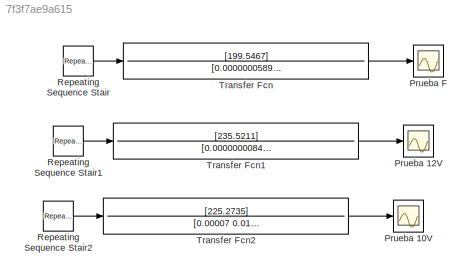
MODEL slx_7f3f7ae9a615
KIND model
CONFIG AbsTol = auto
CONFIG EnableMultiTasking = off
CONFIG FixedStep = auto
CONFIG MaxStep = auto
CONFIG MinStep = auto
CONFIG RelTol = 1e-3
CONFIG SampleTimeConstraint = Unconstrained
CONFIG SolverName = VariableStepAuto
CONFIG StartTime = 0.0
CONFIG StopTime = 8
BLOCK [Scope] Prueba 10V
  Floating = off
  NumInputPorts = 1
  ScopeSpecificationString = Simulink.scopes.TimeScopeBlockCfg('CurrentConfiguration', extmgr.ConfigurationSet(extmgr.Configuration('Core','General UI',true),extmgr.Configuration('Core','Source UI',true),extmgr.Configuration('Sources','WiredSimulink',true,'DataLoggingVariableName','ScopeData2'),extmgr.Configuration('Visuals','Time Domain',true,'SerializedDisplays',{struct('MinYLimReal','-281.59317','MaxYLimReal','2534.3279','...<+1780ch>
BLOCK [Scope] Prueba 12V
  Floating = off
  NumInputPorts = 1
  ScopeSpecificationString = Simulink.scopes.TimeScopeBlockCfg('CurrentConfiguration', extmgr.ConfigurationSet(extmgr.Configuration('Core','General UI',true),extmgr.Configuration('Core','Source UI',true),extmgr.Configuration('Sources','WiredSimulink',true,'DataLoggingVariableName','ScopeData1'),extmgr.Configuration('Visuals','Time Domain',true,'SerializedDisplays',{struct('MinYLimReal','-353.30579','MaxYLimReal','3179.55267',...<+1782ch>
BLOCK [Scope] Prueba F
  Floating = off
  NumInputPorts = 1
  ScopeSpecificationString = Simulink.scopes.TimeScopeBlockCfg('CurrentConfiguration', extmgr.ConfigurationSet(extmgr.Configuration('Core','General UI',true),extmgr.Configuration('Core','Source UI',true),extmgr.Configuration('Sources','WiredSimulink',true),extmgr.Configuration('Visuals','Time Domain',true,'SerializedDisplays',{struct('MinYLimReal','-249.43341','MaxYLimReal','2244.90039','YLabelReal','','MinYLimMag',' 0.00000'...<+1772ch>
BLOCK [Reference] Repeating Sequence Stair  REF=simulink/Sources/Repeating
Sequence
Stair
  SourceBlock = simulink/Sources/Repeating\nSequence\nStair
  SourceType = Repeating Sequence Stair
BLOCK [Reference] Repeating Sequence Stair1  REF=simulink/Sources/Repeating
Sequence
Stair
  SourceBlock = simulink/Sources/Repeating\nSequence\nStair
  SourceType = Repeating Sequence Stair
BLOCK [Reference] Repeating Sequence Stair2  REF=simulink/Sources/Repeating
Sequence
Stair
  SourceBlock = simulink/Sources/Repeating\nSequence\nStair
  SourceType = Repeating Sequence Stair
BLOCK [TransferFcn] Transfer Fcn
  Denominator = [0.0000000589426 0.00049941 1 0]
  Numerator = [199.5467]
BLOCK [TransferFcn] Transfer Fcn1
  Denominator = [0.00000000843499 0.0224028 1 0]
  Numerator = [235.5211]
BLOCK [TransferFcn] Transfer Fcn2
  Denominator = [0.00007 0.0196783 1 0]
  Numerator = [225.2735]
LINE Repeating Sequence Stair1:1 -> Transfer Fcn1:1
LINE Repeating Sequence Stair2:1 -> Transfer Fcn2:1
LINE Repeating Sequence Stair:1 -> Transfer Fcn:1
LINE Transfer Fcn1:1 -> Prueba 12V:1
LINE Transfer Fcn2:1 -> Prueba 10V:1
LINE Transfer Fcn:1 -> Prueba F:1
